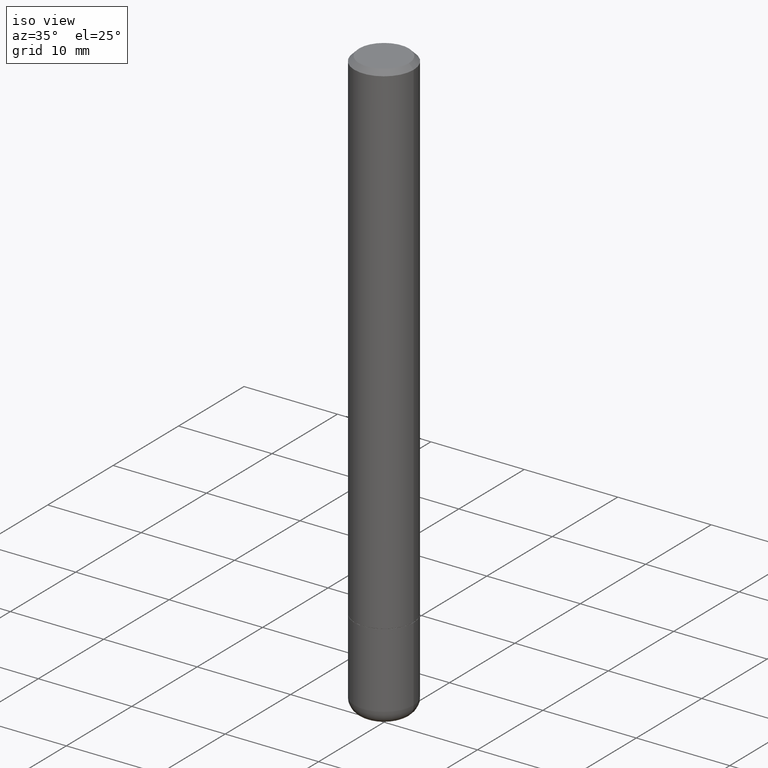
[diagram: clean part render]
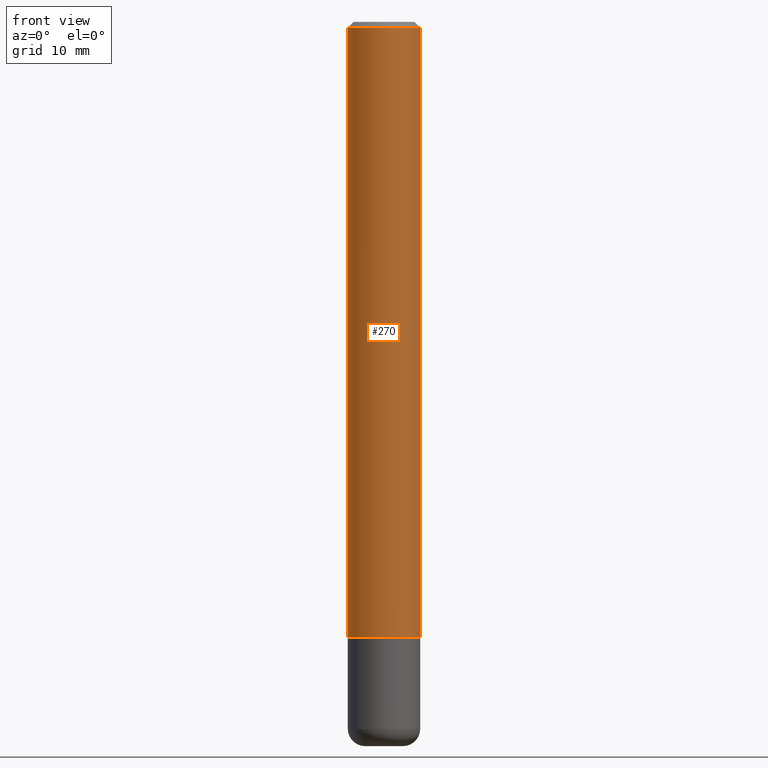
[diagram: tour spotlight — one face highlighted and labeled with its STEP entity id]
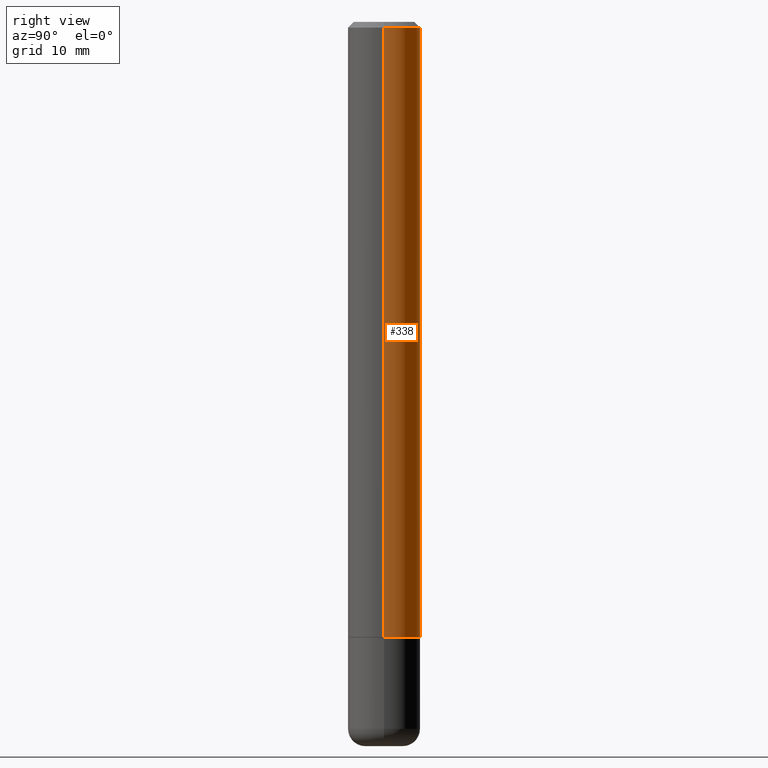
[diagram: tour spotlight — one face highlighted and labeled with its STEP entity id]
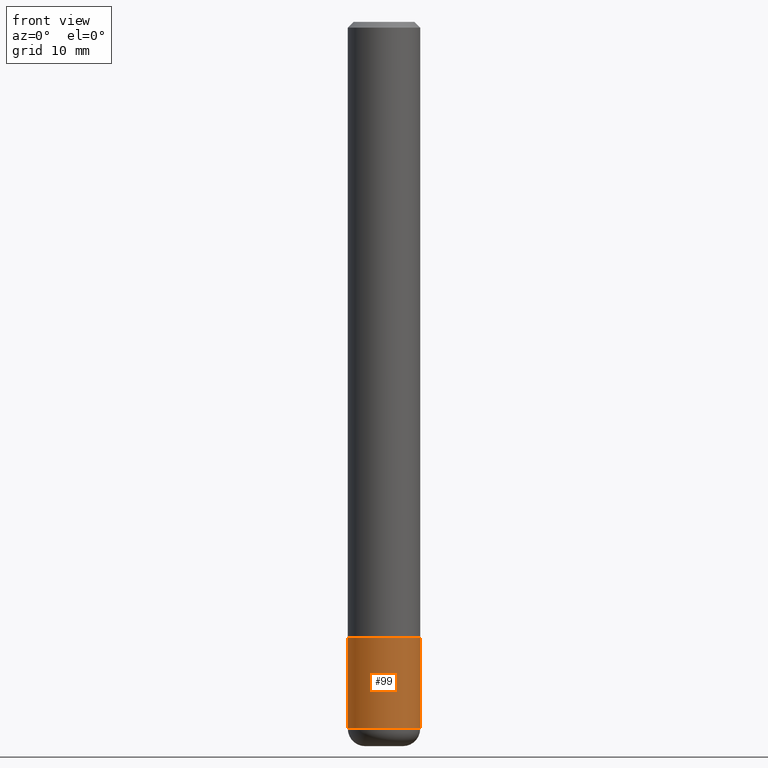
[diagram: tour spotlight — one face highlighted and labeled with its STEP entity id]
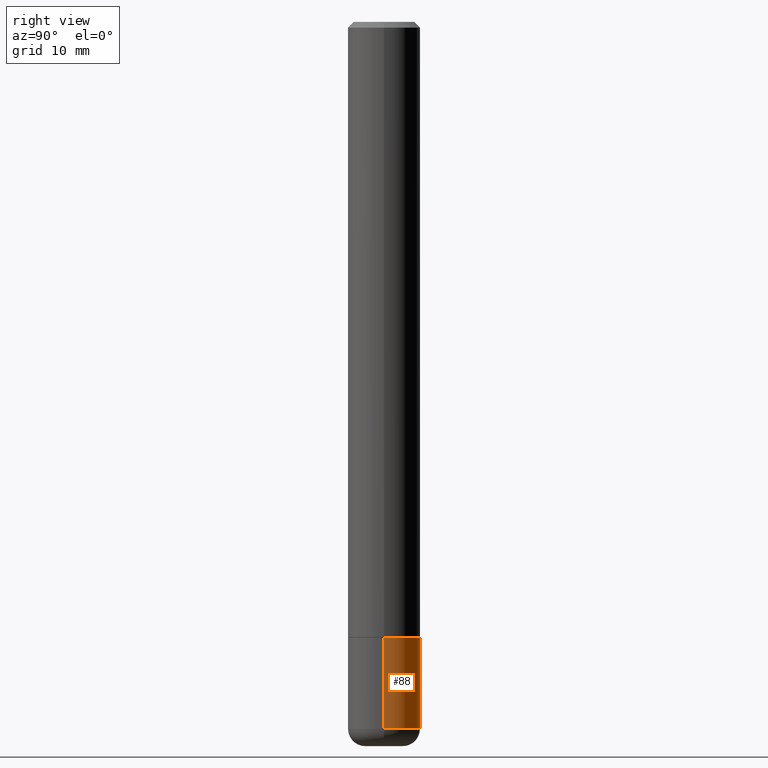
[diagram: tour spotlight — one face highlighted and labeled with its STEP entity id]
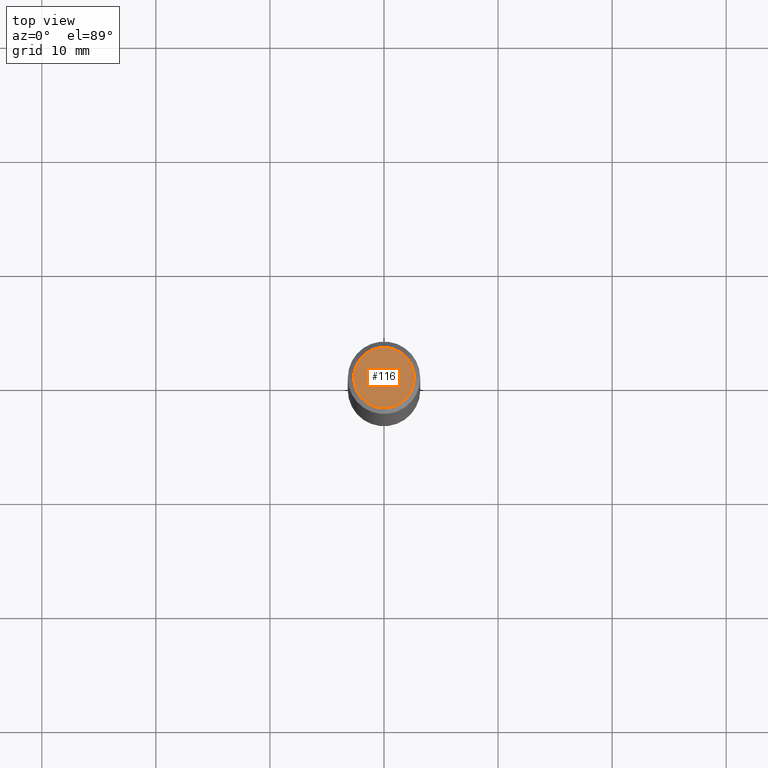
[diagram: tour spotlight — one face highlighted and labeled with its STEP entity id]
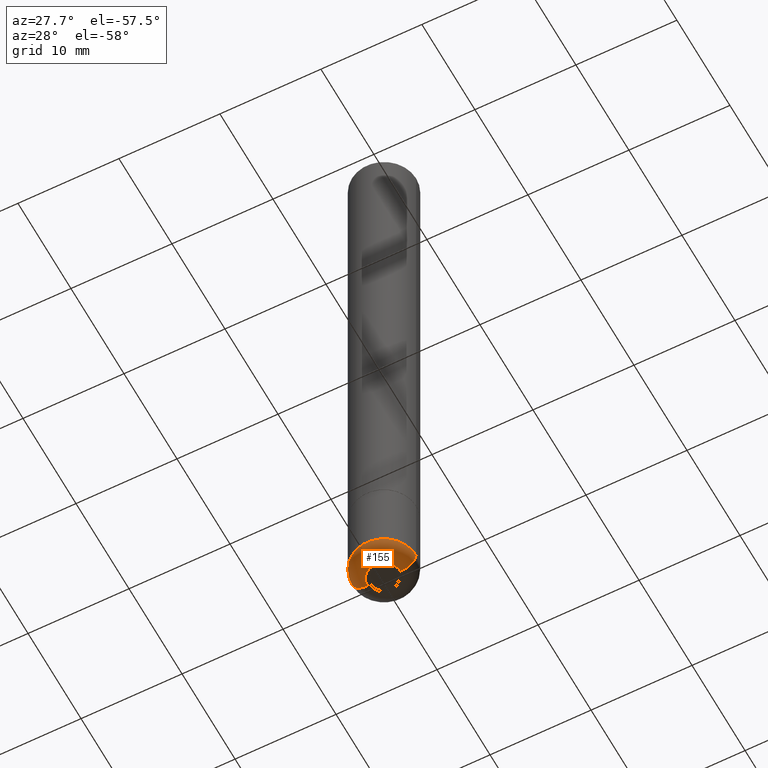
[diagram: tour spotlight — one face highlighted and labeled with its STEP entity id]
A machine part: a face-by-face anatomy tour. The part has 17 B-rep faces; the first image is the clean iso view, then the 6 largest visible faces are spotlighted one at a time (largest first), each with its STEP entity span.

Face 1 — front view, entity #270. In plain terms, the highlighted cylindrical surface (edge-blend (fillet) strip) has radius 3.175 mm, axis along (-0, 0, 1).
Definition (entity closure, byte-faithful):
#6 = EDGE_CURVE ( 'NONE', #241, #468, #33, .T. ) ;
#8 = CYLINDRICAL_SURFACE ( 'NONE', #411, 0.1249999999999993477 ) ;
#32 = DIRECTION ( 'NONE',  ( -2.445468806185136877E-29, 3.491481338843145188E-15, 1.000000000000000000 ) ) ;
#33 = LINE ( 'NONE', #107, #40 ) ;
#40 = VECTOR ( 'NONE', #74, 39.37007874015748143 ) ;
#48 = DIRECTION ( 'NONE',  ( -2.445468806185136597E-29, 3.491481338843145583E-15, 1.000000000000000000 ) ) ;
#74 = DIRECTION ( 'NONE',  ( -2.445468806185136877E-29, 3.491481338843145188E-15, 1.000000000000000000 ) ) ;
#83 = ORIENTED_EDGE ( 'NONE', *, *, #331, .T. ) ;
#92 = FACE_OUTER_BOUND ( 'NONE', #439, .T. ) ;
#107 = CARTESIAN_POINT ( 'NONE',  ( -0.1249999999999993477, 8.881784197001205978E-16, -6.148668862818600698E-30 ) ) ;
#117 = DIRECTION ( 'NONE',  ( -2.445468806185136597E-29, 3.491481338843145583E-15, 1.000000000000000000 ) ) ;
#123 = AXIS2_PLACEMENT_3D ( 'NONE', #381, #48, #198 ) ;
#152 = CIRCLE ( 'NONE', #452, 0.1249999999999992090 ) ;
#181 = DIRECTION ( 'NONE',  ( -2.445468806185136597E-29, 3.491481338843145583E-15, 1.000000000000000000 ) ) ;
#198 = DIRECTION ( 'NONE',  ( 1.000000000000000000, -6.982962677686268288E-15, 0.000000000000000000 ) ) ;
#200 = CARTESIAN_POINT ( 'NONE',  ( 0.1249999999999994865, -8.288776698413622377E-15, -2.124000000000000110 ) ) ;
#239 = CARTESIAN_POINT ( 'NONE',  ( 0.000000000000000000, 0.000000000000000000, 0.000000000000000000 ) ) ;
#241 = VERTEX_POINT ( 'NONE', #467 ) ;
#243 = VECTOR ( 'NONE', #32, 39.37007874015748143 ) ;
#260 = CARTESIAN_POINT ( 'NONE',  ( 0.1249999999999993477, -8.728703347107787043E-16, 6.095220969744888212E-30 ) ) ;
#264 = VERTEX_POINT ( 'NONE', #388 ) ;
#266 = VERTEX_POINT ( 'NONE', #200 ) ;
#270 = ADVANCED_FACE ( 'NONE', ( #92 ), #8, .T. ) ;
#279 = ORIENTED_EDGE ( 'NONE', *, *, #6, .F. ) ;
#281 = ORIENTED_EDGE ( 'NONE', *, *, #481, .F. ) ;
#298 = DIRECTION ( 'NONE',  ( 1.000000000000000000, -6.982962677686265922E-15, 4.876176775795935793E-29 ) ) ;
#331 = EDGE_CURVE ( 'NONE', #266, #264, #480, .T. ) ;
#381 = CARTESIAN_POINT ( 'NONE',  ( 5.194175744337230786E-29, -7.415906363702842194E-15, -2.124000000000000110 ) ) ;
#383 = DIRECTION ( 'NONE',  ( 1.000000000000000000, -6.982962677686267499E-15, 0.000000000000000000 ) ) ;
#384 = CARTESIAN_POINT ( 'NONE',  ( -0.1249999999999992090, 8.030407079339147158E-16, -0.02000000000000009409 ) ) ;
#388 = CARTESIAN_POINT ( 'NONE',  ( 0.1249999999999992090, -9.273918764982992215E-16, -0.02000000000000009409 ) ) ;
#392 = ORIENTED_EDGE ( 'NONE', *, *, #469, .T. ) ;
#411 = AXIS2_PLACEMENT_3D ( 'NONE', #239, #181, #298 ) ;
#415 = CARTESIAN_POINT ( 'NONE',  ( 4.890937612370296805E-31, -6.982962677686323656E-17, -0.02000000000000009409 ) ) ;
#439 = EDGE_LOOP ( 'NONE', ( #279, #392, #83, #281 ) ) ;
#452 = AXIS2_PLACEMENT_3D ( 'NONE', #415, #117, #383 ) ;
#458 = CIRCLE ( 'NONE', #123, 0.1249999999999994865 ) ;
#467 = CARTESIAN_POINT ( 'NONE',  ( -0.1249999999999994865, -2.854689575539726725E-15, -2.124000000000000110 ) ) ;
#468 = VERTEX_POINT ( 'NONE', #384 ) ;
#469 = EDGE_CURVE ( 'NONE', #241, #266, #458, .T. ) ;
#480 = LINE ( 'NONE', #260, #243 ) ;
#481 = EDGE_CURVE ( 'NONE', #468, #264, #152, .T. ) ;

Face 2 — right view, entity #338. In plain terms, the highlighted cylindrical surface (edge-blend (fillet) strip) has radius 3.175 mm, axis along (-0, 0, 1).
Definition (entity closure, byte-faithful):
#6 = EDGE_CURVE ( 'NONE', #241, #468, #33, .T. ) ;
#25 = AXIS2_PLACEMENT_3D ( 'NONE', #474, #93, #53 ) ;
#32 = DIRECTION ( 'NONE',  ( -2.445468806185136877E-29, 3.491481338843145188E-15, 1.000000000000000000 ) ) ;
#33 = LINE ( 'NONE', #107, #40 ) ;
#40 = VECTOR ( 'NONE', #74, 39.37007874015748143 ) ;
#46 = ORIENTED_EDGE ( 'NONE', *, *, #331, .F. ) ;
#53 = DIRECTION ( 'NONE',  ( 1.000000000000000000, -6.982962677686268288E-15, 0.000000000000000000 ) ) ;
#74 = DIRECTION ( 'NONE',  ( -2.445468806185136877E-29, 3.491481338843145188E-15, 1.000000000000000000 ) ) ;
#93 = DIRECTION ( 'NONE',  ( -2.445468806185136597E-29, 3.491481338843145583E-15, 1.000000000000000000 ) ) ;
#103 = DIRECTION ( 'NONE',  ( 1.000000000000000000, -6.982962677686265922E-15, 4.876176775795935793E-29 ) ) ;
#107 = CARTESIAN_POINT ( 'NONE',  ( -0.1249999999999993477, 8.881784197001205978E-16, -6.148668862818600698E-30 ) ) ;
#109 = CARTESIAN_POINT ( 'NONE',  ( 4.890937612370296805E-31, -6.982962677686323656E-17, -0.02000000000000009409 ) ) ;
#125 = EDGE_CURVE ( 'NONE', #266, #241, #491, .T. ) ;
#142 = ORIENTED_EDGE ( 'NONE', *, *, #125, .T. ) ;
#186 = DIRECTION ( 'NONE',  ( -2.445468806185136597E-29, 3.491481338843145583E-15, 1.000000000000000000 ) ) ;
#200 = CARTESIAN_POINT ( 'NONE',  ( 0.1249999999999994865, -8.288776698413622377E-15, -2.124000000000000110 ) ) ;
#213 = CARTESIAN_POINT ( 'NONE',  ( 0.000000000000000000, 0.000000000000000000, 0.000000000000000000 ) ) ;
#222 = AXIS2_PLACEMENT_3D ( 'NONE', #213, #326, #103 ) ;
#241 = VERTEX_POINT ( 'NONE', #467 ) ;
#243 = VECTOR ( 'NONE', #32, 39.37007874015748143 ) ;
#260 = CARTESIAN_POINT ( 'NONE',  ( 0.1249999999999993477, -8.728703347107787043E-16, 6.095220969744888212E-30 ) ) ;
#264 = VERTEX_POINT ( 'NONE', #388 ) ;
#266 = VERTEX_POINT ( 'NONE', #200 ) ;
#283 = CIRCLE ( 'NONE', #394, 0.1249999999999992090 ) ;
#326 = DIRECTION ( 'NONE',  ( -2.445468806185136597E-29, 3.491481338843145583E-15, 1.000000000000000000 ) ) ;
#331 = EDGE_CURVE ( 'NONE', #266, #264, #480, .T. ) ;
#335 = DIRECTION ( 'NONE',  ( 1.000000000000000000, -6.982962677686267499E-15, 0.000000000000000000 ) ) ;
#338 = ADVANCED_FACE ( 'NONE', ( #449 ), #401, .T. ) ;
#346 = EDGE_CURVE ( 'NONE', #264, #468, #283, .T. ) ;
#355 = ORIENTED_EDGE ( 'NONE', *, *, #346, .F. ) ;
#384 = CARTESIAN_POINT ( 'NONE',  ( -0.1249999999999992090, 8.030407079339147158E-16, -0.02000000000000009409 ) ) ;
#388 = CARTESIAN_POINT ( 'NONE',  ( 0.1249999999999992090, -9.273918764982992215E-16, -0.02000000000000009409 ) ) ;
#394 = AXIS2_PLACEMENT_3D ( 'NONE', #109, #186, #335 ) ;
#401 = CYLINDRICAL_SURFACE ( 'NONE', #222, 0.1249999999999993477 ) ;
#423 = EDGE_LOOP ( 'NONE', ( #142, #428, #355, #46 ) ) ;
#428 = ORIENTED_EDGE ( 'NONE', *, *, #6, .T. ) ;
#449 = FACE_OUTER_BOUND ( 'NONE', #423, .T. ) ;
#467 = CARTESIAN_POINT ( 'NONE',  ( -0.1249999999999994865, -2.854689575539726725E-15, -2.124000000000000110 ) ) ;
#468 = VERTEX_POINT ( 'NONE', #384 ) ;
#474 = CARTESIAN_POINT ( 'NONE',  ( 5.194175744337230786E-29, -7.415906363702842194E-15, -2.124000000000000110 ) ) ;
#480 = LINE ( 'NONE', #260, #243 ) ;
#491 = CIRCLE ( 'NONE', #25, 0.1249999999999994865 ) ;

Face 3 — front view, entity #99. In plain terms, the highlighted cylindrical surface (edge-blend (fillet) strip) has radius 3.175 mm, axis along (-0, 0, 1).
Definition (entity closure, byte-faithful):
#1 = VERTEX_POINT ( 'NONE', #407 ) ;
#3 = ORIENTED_EDGE ( 'NONE', *, *, #191, .T. ) ;
#9 = VERTEX_POINT ( 'NONE', #68 ) ;
#11 = DIRECTION ( 'NONE',  ( 1.000000000000000000, -6.982962677686269077E-15, 0.000000000000000000 ) ) ;
#16 = ORIENTED_EDGE ( 'NONE', *, *, #184, .F. ) ;
#23 = DIRECTION ( 'NONE',  ( -2.445468806185136597E-29, 3.491481338843145583E-15, 1.000000000000000000 ) ) ;
#26 = LINE ( 'NONE', #77, #403 ) ;
#29 = CYLINDRICAL_SURFACE ( 'NONE', #348, 0.1249999999999997918 ) ;
#44 = EDGE_CURVE ( 'NONE', #1, #9, #26, .T. ) ;
#51 = DIRECTION ( 'NONE',  ( 1.000000000000000000, -6.982962677686264344E-15, 0.000000000000000000 ) ) ;
#63 = LINE ( 'NONE', #390, #432 ) ;
#68 = CARTESIAN_POINT ( 'NONE',  ( -0.1249999999999995559, -7.081131724556683478E-15, -2.125000000000000000 ) ) ;
#77 = CARTESIAN_POINT ( 'NONE',  ( -0.1249999999999997918, 8.881784197001237532E-16, -6.148668862818622418E-30 ) ) ;
#99 = ADVANCED_FACE ( 'NONE', ( #139 ), #29, .T. ) ;
#105 = VERTEX_POINT ( 'NONE', #287 ) ;
#129 = ORIENTED_EDGE ( 'NONE', *, *, #44, .F. ) ;
#135 = CARTESIAN_POINT ( 'NONE',  ( 5.966949474049262823E-29, -8.519222443471929064E-15, -2.440002284616149986 ) ) ;
#139 = FACE_OUTER_BOUND ( 'NONE', #235, .T. ) ;
#145 = CARTESIAN_POINT ( 'NONE',  ( 0.000000000000000000, 0.000000000000000000, 0.000000000000000000 ) ) ;
#173 = ORIENTED_EDGE ( 'NONE', *, *, #223, .T. ) ;
#184 = EDGE_CURVE ( 'NONE', #9, #240, #425, .T. ) ;
#191 = EDGE_CURVE ( 'NONE', #1, #105, #274, .T. ) ;
#223 = EDGE_CURVE ( 'NONE', #105, #240, #63, .T. ) ;
#235 = EDGE_LOOP ( 'NONE', ( #129, #3, #173, #16 ) ) ;
#240 = VERTEX_POINT ( 'NONE', #324 ) ;
#274 = CIRCLE ( 'NONE', #301, 0.1250000000000000278 ) ;
#287 = CARTESIAN_POINT ( 'NONE',  ( 0.1250000000000000278, -9.392092778182712402E-15, -2.440002284616149986 ) ) ;
#301 = AXIS2_PLACEMENT_3D ( 'NONE', #135, #356, #11 ) ;
#324 = CARTESIAN_POINT ( 'NONE',  ( 0.1249999999999995559, -8.292268179752463807E-15, -2.125000000000000000 ) ) ;
#348 = AXIS2_PLACEMENT_3D ( 'NONE', #145, #447, #370 ) ;
#356 = DIRECTION ( 'NONE',  ( -2.445468806185136597E-29, 3.491481338843145583E-15, 1.000000000000000000 ) ) ;
#358 = CARTESIAN_POINT ( 'NONE',  ( 5.196621213143415268E-29, -7.419397845041685201E-15, -2.125000000000000000 ) ) ;
#366 = DIRECTION ( 'NONE',  ( -2.445468806185136877E-29, 3.491481338843145188E-15, 1.000000000000000000 ) ) ;
#370 = DIRECTION ( 'NONE',  ( 1.000000000000000000, -6.982962677686266711E-15, 4.876176775795935232E-29 ) ) ;
#390 = CARTESIAN_POINT ( 'NONE',  ( 0.1249999999999997918, -8.728703347107818597E-16, 6.095220969744909231E-30 ) ) ;
#403 = VECTOR ( 'NONE', #366, 39.37007874015748143 ) ;
#407 = CARTESIAN_POINT ( 'NONE',  ( -0.1250000000000000555, -7.081131724556680322E-15, -2.440002284616149986 ) ) ;
#425 = CIRCLE ( 'NONE', #485, 0.1249999999999995559 ) ;
#432 = VECTOR ( 'NONE', #471, 39.37007874015748143 ) ;
#447 = DIRECTION ( 'NONE',  ( -2.445468806185136597E-29, 3.491481338843145583E-15, 1.000000000000000000 ) ) ;
#471 = DIRECTION ( 'NONE',  ( -2.445468806185136877E-29, 3.491481338843145188E-15, 1.000000000000000000 ) ) ;
#485 = AXIS2_PLACEMENT_3D ( 'NONE', #358, #23, #51 ) ;

Face 4 — right view, entity #88. In plain terms, the highlighted cylindrical surface (edge-blend (fillet) strip) has radius 3.175 mm, axis along (-0, 0, 1).
Definition (entity closure, byte-faithful):
#1 = VERTEX_POINT ( 'NONE', #407 ) ;
#7 = EDGE_LOOP ( 'NONE', ( #38, #277, #259, #386 ) ) ;
#9 = VERTEX_POINT ( 'NONE', #68 ) ;
#26 = LINE ( 'NONE', #77, #403 ) ;
#28 = DIRECTION ( 'NONE',  ( -2.445468806185136597E-29, 3.491481338843145583E-15, 1.000000000000000000 ) ) ;
#38 = ORIENTED_EDGE ( 'NONE', *, *, #174, .T. ) ;
#44 = EDGE_CURVE ( 'NONE', #1, #9, #26, .T. ) ;
#63 = LINE ( 'NONE', #390, #432 ) ;
#68 = CARTESIAN_POINT ( 'NONE',  ( -0.1249999999999995559, -7.081131724556683478E-15, -2.125000000000000000 ) ) ;
#77 = CARTESIAN_POINT ( 'NONE',  ( -0.1249999999999997918, 8.881784197001237532E-16, -6.148668862818622418E-30 ) ) ;
#85 = AXIS2_PLACEMENT_3D ( 'NONE', #353, #177, #242 ) ;
#88 = ADVANCED_FACE ( 'NONE', ( #137 ), #436, .T. ) ;
#105 = VERTEX_POINT ( 'NONE', #287 ) ;
#137 = FACE_OUTER_BOUND ( 'NONE', #7, .T. ) ;
#143 = CARTESIAN_POINT ( 'NONE',  ( 5.196621213143415268E-29, -7.419397845041685201E-15, -2.125000000000000000 ) ) ;
#157 = AXIS2_PLACEMENT_3D ( 'NONE', #185, #330, #479 ) ;
#174 = EDGE_CURVE ( 'NONE', #105, #1, #339, .T. ) ;
#177 = DIRECTION ( 'NONE',  ( -2.445468806185136597E-29, 3.491481338843145583E-15, 1.000000000000000000 ) ) ;
#178 = CIRCLE ( 'NONE', #396, 0.1249999999999995559 ) ;
#185 = CARTESIAN_POINT ( 'NONE',  ( 0.000000000000000000, 0.000000000000000000, 0.000000000000000000 ) ) ;
#223 = EDGE_CURVE ( 'NONE', #105, #240, #63, .T. ) ;
#240 = VERTEX_POINT ( 'NONE', #324 ) ;
#242 = DIRECTION ( 'NONE',  ( 1.000000000000000000, -6.982962677686269077E-15, 0.000000000000000000 ) ) ;
#253 = DIRECTION ( 'NONE',  ( 1.000000000000000000, -6.982962677686264344E-15, 0.000000000000000000 ) ) ;
#259 = ORIENTED_EDGE ( 'NONE', *, *, #304, .F. ) ;
#277 = ORIENTED_EDGE ( 'NONE', *, *, #44, .T. ) ;
#287 = CARTESIAN_POINT ( 'NONE',  ( 0.1250000000000000278, -9.392092778182712402E-15, -2.440002284616149986 ) ) ;
#304 = EDGE_CURVE ( 'NONE', #240, #9, #178, .T. ) ;
#324 = CARTESIAN_POINT ( 'NONE',  ( 0.1249999999999995559, -8.292268179752463807E-15, -2.125000000000000000 ) ) ;
#330 = DIRECTION ( 'NONE',  ( -2.445468806185136597E-29, 3.491481338843145583E-15, 1.000000000000000000 ) ) ;
#339 = CIRCLE ( 'NONE', #85, 0.1250000000000000278 ) ;
#353 = CARTESIAN_POINT ( 'NONE',  ( 5.966949474049262823E-29, -8.519222443471929064E-15, -2.440002284616149986 ) ) ;
#366 = DIRECTION ( 'NONE',  ( -2.445468806185136877E-29, 3.491481338843145188E-15, 1.000000000000000000 ) ) ;
#386 = ORIENTED_EDGE ( 'NONE', *, *, #223, .F. ) ;
#390 = CARTESIAN_POINT ( 'NONE',  ( 0.1249999999999997918, -8.728703347107818597E-16, 6.095220969744909231E-30 ) ) ;
#396 = AXIS2_PLACEMENT_3D ( 'NONE', #143, #28, #253 ) ;
#403 = VECTOR ( 'NONE', #366, 39.37007874015748143 ) ;
#407 = CARTESIAN_POINT ( 'NONE',  ( -0.1250000000000000555, -7.081131724556680322E-15, -2.440002284616149986 ) ) ;
#432 = VECTOR ( 'NONE', #471, 39.37007874015748143 ) ;
#436 = CYLINDRICAL_SURFACE ( 'NONE', #157, 0.1249999999999997918 ) ;
#471 = DIRECTION ( 'NONE',  ( -2.445468806185136877E-29, 3.491481338843145188E-15, 1.000000000000000000 ) ) ;
#479 = DIRECTION ( 'NONE',  ( 1.000000000000000000, -6.982962677686266711E-15, 4.876176775795935232E-29 ) ) ;

Face 5 — top view, entity #116. In plain terms, the highlighted planar face has unit normal (0, -0, -1).
Definition (entity closure, byte-faithful):
#4 = AXIS2_PLACEMENT_3D ( 'NONE', #312, #98, #247 ) ;
#45 = EDGE_LOOP ( 'NONE', ( #327, #58 ) ) ;
#57 = CIRCLE ( 'NONE', #79, 0.1049999999999992190 ) ;
#58 = ORIENTED_EDGE ( 'NONE', *, *, #216, .T. ) ;
#65 = EDGE_CURVE ( 'NONE', #289, #376, #57, .T. ) ;
#79 = AXIS2_PLACEMENT_3D ( 'NONE', #218, #180, #220 ) ;
#98 = DIRECTION ( 'NONE',  ( -2.445468806185136597E-29, 3.491481338843145583E-15, 1.000000000000000000 ) ) ;
#102 = FACE_OUTER_BOUND ( 'NONE', #45, .T. ) ;
#116 = ADVANCED_FACE ( 'NONE', ( #102 ), #250, .F. ) ;
#122 = CIRCLE ( 'NONE', #4, 0.1049999999999992190 ) ;
#163 = DIRECTION ( 'NONE',  ( -1.000000000000000000, 6.982962677686265922E-15, -4.876176775795935793E-29 ) ) ;
#180 = DIRECTION ( 'NONE',  ( -2.445468806185136597E-29, 3.491481338843145583E-15, 1.000000000000000000 ) ) ;
#182 = CARTESIAN_POINT ( 'NONE',  ( 7.332110811570524037E-16, 0.1049999999999992190, -3.900823592740798305E-16 ) ) ;
#192 = CARTESIAN_POINT ( 'NONE',  ( -0.1049999999999992190, 7.681258945454834611E-16, -4.695363739110977184E-17 ) ) ;
#216 = EDGE_CURVE ( 'NONE', #376, #289, #122, .T. ) ;
#218 = CARTESIAN_POINT ( 'NONE',  ( 1.148236555768741665E-45, -1.639377487418492057E-31, -4.695363739110452099E-17 ) ) ;
#220 = DIRECTION ( 'NONE',  ( 1.000000000000000000, -6.982962677686267499E-15, 4.874400871621274649E-29 ) ) ;
#247 = DIRECTION ( 'NONE',  ( 1.000000000000000000, -6.982962677686267499E-15, 4.874400871621274649E-29 ) ) ;
#250 = PLANE ( 'NONE',  #364 ) ;
#289 = VERTEX_POINT ( 'NONE', #192 ) ;
#312 = CARTESIAN_POINT ( 'NONE',  ( 1.148236555768741665E-45, -1.639377487418492057E-31, -4.695363739110452099E-17 ) ) ;
#327 = ORIENTED_EDGE ( 'NONE', *, *, #65, .T. ) ;
#364 = AXIS2_PLACEMENT_3D ( 'NONE', #182, #402, #163 ) ;
#376 = VERTEX_POINT ( 'NONE', #489 ) ;
#402 = DIRECTION ( 'NONE',  ( 2.438088387897960049E-29, -3.491481338843145188E-15, -1.000000000000000000 ) ) ;
#489 = CARTESIAN_POINT ( 'NONE',  ( 0.1049999999999992190, -8.238720831321523396E-16, -4.695363739109907908E-17 ) ) ;

Face 6 — auxiliary view, entity #155. In plain terms, the highlighted toroidal blend (fillet) surface has major radius 1.651 mm and minor (blend) radius 1.524 mm.
Definition (entity closure, byte-faithful):
#1 = VERTEX_POINT ( 'NONE', #407 ) ;
#11 = DIRECTION ( 'NONE',  ( 1.000000000000000000, -6.982962677686269077E-15, 0.000000000000000000 ) ) ;
#34 = TOROIDAL_SURFACE ( 'NONE', #115, 0.06500000000000019651, 0.05999999999999985206 ) ;
#75 = CARTESIAN_POINT ( 'NONE',  ( -0.06447640787009809027, -7.950807469239815743E-15, -2.500000000000000000 ) ) ;
#104 = CIRCLE ( 'NONE', #421, 0.06447640787009809027 ) ;
#105 = VERTEX_POINT ( 'NONE', #287 ) ;
#114 = AXIS2_PLACEMENT_3D ( 'NONE', #293, #446, #297 ) ;
#115 = AXIS2_PLACEMENT_3D ( 'NONE', #206, #398, #361 ) ;
#127 = FACE_OUTER_BOUND ( 'NONE', #451, .T. ) ;
#130 = CARTESIAN_POINT ( 'NONE',  ( 6.113672015462842613E-29, -8.728703347107864943E-15, -2.500000000000000000 ) ) ;
#135 = CARTESIAN_POINT ( 'NONE',  ( 5.966949474049262823E-29, -8.519222443471929064E-15, -2.440002284616149986 ) ) ;
#155 = ADVANCED_FACE ( 'NONE', ( #127 ), #34, .T. ) ;
#191 = EDGE_CURVE ( 'NONE', #1, #105, #274, .T. ) ;
#194 = ORIENTED_EDGE ( 'NONE', *, *, #268, .T. ) ;
#206 = CARTESIAN_POINT ( 'NONE',  ( 5.966949474049262823E-29, -8.519222443471929064E-15, -2.440002284616149986 ) ) ;
#208 = VERTEX_POINT ( 'NONE', #429 ) ;
#211 = CARTESIAN_POINT ( 'NONE',  ( 0.06500000000000019651, -8.973115017521537346E-15, -2.440002284616149986 ) ) ;
#251 = EDGE_CURVE ( 'NONE', #208, #105, #463, .T. ) ;
#252 = AXIS2_PLACEMENT_3D ( 'NONE', #211, #478, #278 ) ;
#268 = EDGE_CURVE ( 'NONE', #360, #208, #104, .T. ) ;
#274 = CIRCLE ( 'NONE', #301, 0.1250000000000000278 ) ;
#278 = DIRECTION ( 'NONE',  ( 1.000000000000000000, -6.982962677686253300E-15, 0.000000000000000000 ) ) ;
#287 = CARTESIAN_POINT ( 'NONE',  ( 0.1250000000000000278, -9.392092778182712402E-15, -2.440002284616149986 ) ) ;
#293 = CARTESIAN_POINT ( 'NONE',  ( -0.06500000000000019651, -8.057369665227862744E-15, -2.440002284616149986 ) ) ;
#297 = DIRECTION ( 'NONE',  ( -1.000000000000000000, 7.105427357601008170E-15, 0.000000000000000000 ) ) ;
#301 = AXIS2_PLACEMENT_3D ( 'NONE', #135, #356, #11 ) ;
#307 = EDGE_CURVE ( 'NONE', #360, #1, #332, .T. ) ;
#332 = CIRCLE ( 'NONE', #114, 0.05999999999999985206 ) ;
#334 = ORIENTED_EDGE ( 'NONE', *, *, #251, .T. ) ;
#351 = DIRECTION ( 'NONE',  ( -2.445468806185136597E-29, 3.491481338843145583E-15, 1.000000000000000000 ) ) ;
#356 = DIRECTION ( 'NONE',  ( -2.445468806185136597E-29, 3.491481338843145583E-15, 1.000000000000000000 ) ) ;
#360 = VERTEX_POINT ( 'NONE', #75 ) ;
#361 = DIRECTION ( 'NONE',  ( 1.000000000000000000, -6.982962677686268288E-15, 4.883557194083113462E-29 ) ) ;
#398 = DIRECTION ( 'NONE',  ( -2.445468806185136597E-29, 3.491481338843145583E-15, 1.000000000000000000 ) ) ;
#407 = CARTESIAN_POINT ( 'NONE',  ( -0.1250000000000000555, -7.081131724556680322E-15, -2.440002284616149986 ) ) ;
#421 = AXIS2_PLACEMENT_3D ( 'NONE', #130, #351, #431 ) ;
#429 = CARTESIAN_POINT ( 'NONE',  ( 0.06447640787009809027, -9.178939696856037528E-15, -2.500000000000000000 ) ) ;
#431 = DIRECTION ( 'NONE',  ( 1.000000000000000000, -6.982962677686280121E-15, 0.000000000000000000 ) ) ;
#433 = ORIENTED_EDGE ( 'NONE', *, *, #191, .F. ) ;
#446 = DIRECTION ( 'NONE',  ( 7.105427357601001859E-15, 1.000000000000000000, -3.491481338843145583E-15 ) ) ;
#451 = EDGE_LOOP ( 'NONE', ( #470, #194, #334, #433 ) ) ;
#463 = CIRCLE ( 'NONE', #252, 0.05999999999999985206 ) ;
#470 = ORIENTED_EDGE ( 'NONE', *, *, #307, .F. ) ;
#478 = DIRECTION ( 'NONE',  ( -6.982962677686266711E-15, -1.000000000000000000, 3.491481338843145583E-15 ) ) ;